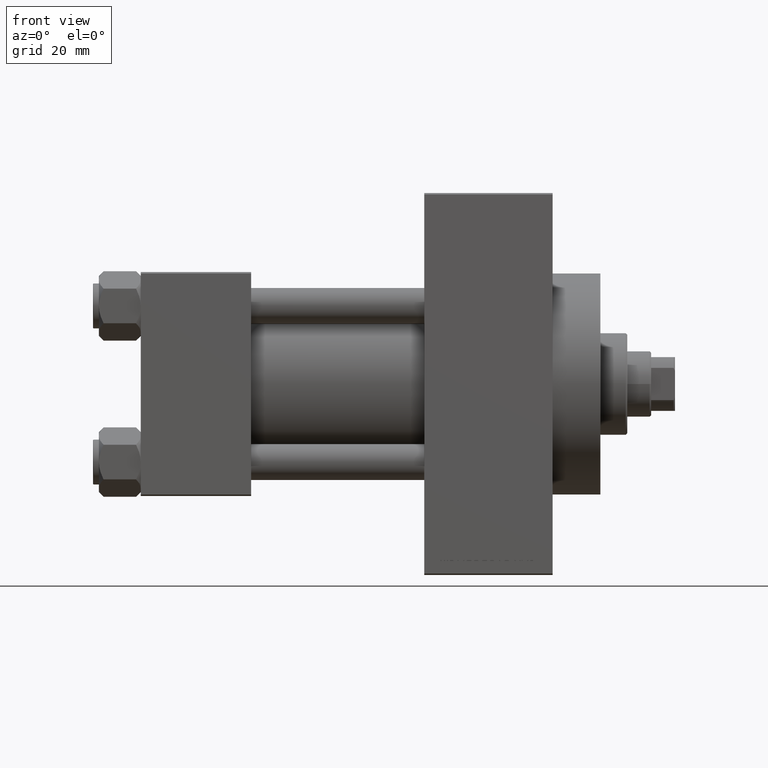
[diagram: clean part render]
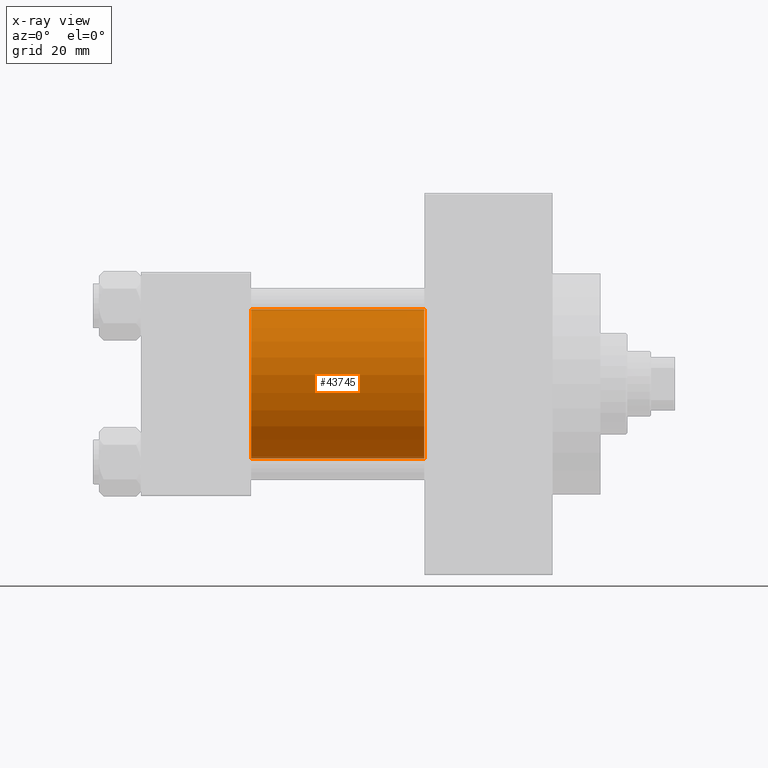
[diagram: x-ray — body ghosted, one internal face saturated and labeled with its STEP entity id]
A machine part, front view, then the same camera in x-ray: the body is ghosted and one INTERNAL B-rep face — a face not visible from any outside direction — is saturated and labeled: STEP entity #43745.
In plain terms, the highlighted cylindrical surface (partial cylindrical patch) has radius 25 mm, axis along (-1, -0, -0).
Its self-contained STEP definition (entity closure, byte-faithful):
#752 = ORIENTED_EDGE ( 'NONE', *, *, #28970, .T. ) ;
#2090 = EDGE_CURVE ( 'NONE', #43157, #8689, #47129, .T. ) ;
#4721 = CARTESIAN_POINT ( 'NONE',  ( 37.00000000000000000, -2.602085213965210642E-15, 0.000000000000000000 ) ) ;
#5540 = CARTESIAN_POINT ( 'NONE',  ( 95.00000000000000000, -2.602085213965210642E-15, 0.000000000000000000 ) ) ;
#5992 = CARTESIAN_POINT ( 'NONE',  ( 95.00000000000000000, 4.595317839031718093E-16, -25.00000000000000000 ) ) ;
#6045 = CARTESIAN_POINT ( 'NONE',  ( 37.00000000000000000, 4.595317839031718093E-16, -25.00000000000000000 ) ) ;
#7263 = LINE ( 'NONE', #37348, #32417 ) ;
#8644 = FACE_OUTER_BOUND ( 'NONE', #23846, .T. ) ;
#8689 = VERTEX_POINT ( 'NONE', #6045 ) ;
#9012 = AXIS2_PLACEMENT_3D ( 'NONE', #4721, #22382, #43666 ) ;
#10482 = LINE ( 'NONE', #5992, #12479 ) ;
#11540 = DIRECTION ( 'NONE',  ( -1.000000000000000000, -0.000000000000000000, -0.000000000000000000 ) ) ;
#11799 = DIRECTION ( 'NONE',  ( 1.000000000000000000, 0.000000000000000000, 0.000000000000000000 ) ) ;
#12479 = VECTOR ( 'NONE', #14304, 1000.000000000000000 ) ;
#12691 = DIRECTION ( 'NONE',  ( 0.000000000000000000, 0.000000000000000000, 1.000000000000000000 ) ) ;
#14304 = DIRECTION ( 'NONE',  ( -1.000000000000000000, -0.000000000000000000, -0.000000000000000000 ) ) ;
#19700 = EDGE_CURVE ( 'NONE', #22607, #26898, #40551, .T. ) ;
#21482 = AXIS2_PLACEMENT_3D ( 'NONE', #44520, #11799, #22783 ) ;
#22382 = DIRECTION ( 'NONE',  ( 1.000000000000000000, 0.000000000000000000, 0.000000000000000000 ) ) ;
#22607 = VERTEX_POINT ( 'NONE', #27368 ) ;
#22783 = DIRECTION ( 'NONE',  ( 0.000000000000000000, 0.000000000000000000, -1.000000000000000000 ) ) ;
#23846 = EDGE_LOOP ( 'NONE', ( #24379, #752, #40877, #34952 ) ) ;
#24379 = ORIENTED_EDGE ( 'NONE', *, *, #19700, .T. ) ;
#26573 = AXIS2_PLACEMENT_3D ( 'NONE', #5540, #33946, #12691 ) ;
#26898 = VERTEX_POINT ( 'NONE', #36958 ) ;
#27368 = CARTESIAN_POINT ( 'NONE',  ( 95.00000000000000000, -2.602085213965210642E-15, 25.00000000000000000 ) ) ;
#28970 = EDGE_CURVE ( 'NONE', #26898, #8689, #10482, .T. ) ;
#32413 = EDGE_CURVE ( 'NONE', #22607, #43157, #7263, .T. ) ;
#32417 = VECTOR ( 'NONE', #11540, 1000.000000000000000 ) ;
#33946 = DIRECTION ( 'NONE',  ( -1.000000000000000000, -0.000000000000000000, -0.000000000000000000 ) ) ;
#34952 = ORIENTED_EDGE ( 'NONE', *, *, #32413, .F. ) ;
#36958 = CARTESIAN_POINT ( 'NONE',  ( 95.00000000000000000, 4.595317839031718093E-16, -25.00000000000000000 ) ) ;
#37348 = CARTESIAN_POINT ( 'NONE',  ( 95.00000000000000000, -2.602085213965210642E-15, 25.00000000000000000 ) ) ;
#37545 = CYLINDRICAL_SURFACE ( 'NONE', #26573, 25.00000000000000000 ) ;
#40551 = CIRCLE ( 'NONE', #21482, 25.00000000000000000 ) ;
#40594 = CARTESIAN_POINT ( 'NONE',  ( 37.00000000000000000, -2.602085213965210642E-15, 25.00000000000000000 ) ) ;
#40877 = ORIENTED_EDGE ( 'NONE', *, *, #2090, .F. ) ;
#43157 = VERTEX_POINT ( 'NONE', #40594 ) ;
#43666 = DIRECTION ( 'NONE',  ( 0.000000000000000000, 0.000000000000000000, -1.000000000000000000 ) ) ;
#43745 = ADVANCED_FACE ( 'NONE', ( #8644 ), #37545, .F. ) ;
#44520 = CARTESIAN_POINT ( 'NONE',  ( 95.00000000000000000, -2.602085213965210642E-15, 0.000000000000000000 ) ) ;
#47129 = CIRCLE ( 'NONE', #9012, 25.00000000000000000 ) ;